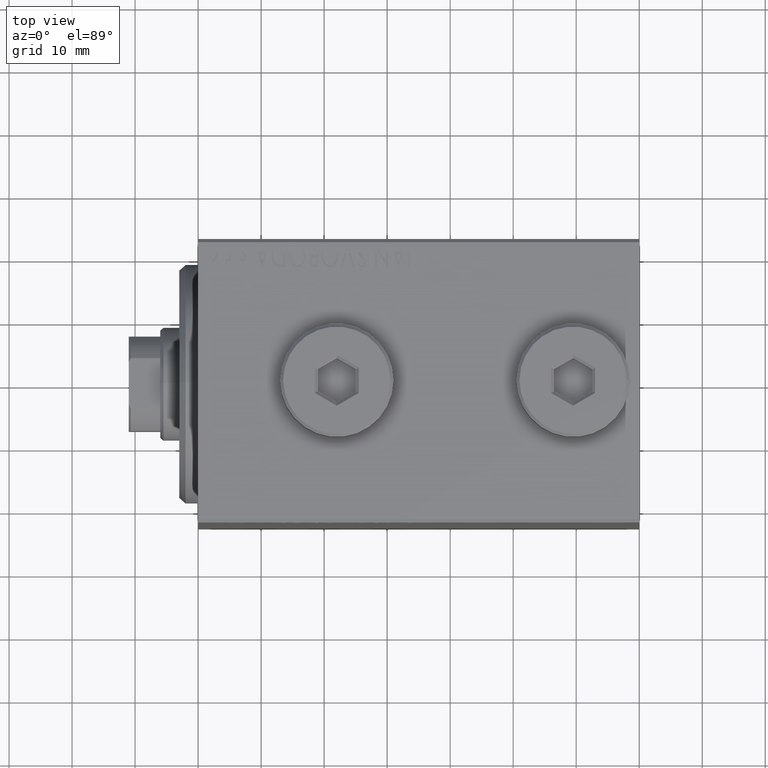
[diagram: clean part render]
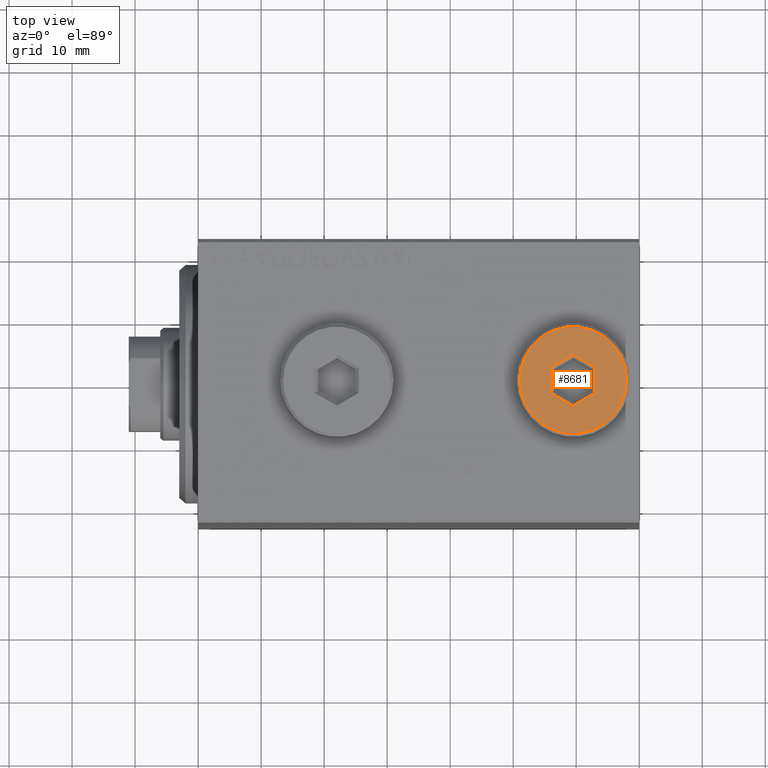
[diagram: same view with one face highlighted and labeled with its STEP entity id]
A machine part, top view. The second image highlights one B-rep face of the part: STEP entity #8681.
In plain terms, the highlighted planar face has unit normal (0, 0, 1).
Its self-contained STEP definition (entity closure, byte-faithful):
#286 = CARTESIAN_POINT ( 'NONE',  ( 0.2500000000000027756, -3.897114317029979347, 5.000000000000000000 ) ) ;
#707 = DIRECTION ( 'NONE',  ( 0.000000000000000000, 0.000000000000000000, 1.000000000000000000 ) ) ;
#981 = ORIENTED_EDGE ( 'NONE', *, *, #41850, .T. ) ;
#1307 = CARTESIAN_POINT ( 'NONE',  ( -1.006139216460143630E-15, -4.041451884327387667, 5.000000000000000000 ) ) ;
#1585 = LINE ( 'NONE', #36422, #6460 ) ;
#2580 = EDGE_LOOP ( 'NONE', ( #981, #43783, #11514, #38127, #28590, #23123 ) ) ;
#4727 = CARTESIAN_POINT ( 'NONE',  ( 3.250000000000003109, 2.165063509461103042, 5.000000000000000000 ) ) ;
#4956 = FACE_BOUND ( 'NONE', #2580, .T. ) ;
#4958 = DIRECTION ( 'NONE',  ( 0.000000000000000000, -1.000000000000000000, 0.000000000000000000 ) ) ;
#6460 = VECTOR ( 'NONE', #22583, 1000.000000000000114 ) ;
#6925 = EDGE_CURVE ( 'NONE', #18338, #8123, #36324, .T. ) ;
#7754 = PLANE ( 'NONE',  #27437 ) ;
#8051 = CARTESIAN_POINT ( 'NONE',  ( 8.500000000000010658, 1.071565949253934716E-15, 5.000000000000000000 ) ) ;
#8123 = VERTEX_POINT ( 'NONE', #31103 ) ;
#8602 = CIRCLE ( 'NONE', #14512, 8.500000000000010658 ) ;
#8681 = ADVANCED_FACE ( 'NONE', ( #4956, #29188 ), #7754, .T. ) ;
#8937 = LINE ( 'NONE', #23217, #30168 ) ;
#9292 = ORIENTED_EDGE ( 'NONE', *, *, #27814, .T. ) ;
#11514 = ORIENTED_EDGE ( 'NONE', *, *, #6925, .T. ) ;
#11640 = EDGE_LOOP ( 'NONE', ( #37085, #9292 ) ) ;
#11768 = VERTEX_POINT ( 'NONE', #18283 ) ;
#12338 = CARTESIAN_POINT ( 'NONE',  ( 1.590596867181068292E-15, 4.041451884327386779, 5.000000000000000000 ) ) ;
#13479 = LINE ( 'NONE', #41596, #40491 ) ;
#14208 = VERTEX_POINT ( 'NONE', #8051 ) ;
#14512 = AXIS2_PLACEMENT_3D ( 'NONE', #28192, #25646, #35791 ) ;
#15842 = VECTOR ( 'NONE', #4958, 1000.000000000000000 ) ;
#17008 = CARTESIAN_POINT ( 'NONE',  ( -8.500000000000010658, 0.000000000000000000, 5.000000000000000000 ) ) ;
#17807 = LINE ( 'NONE', #286, #26907 ) ;
#18283 = CARTESIAN_POINT ( 'NONE',  ( -3.500000000000006661, 2.020725942163692945, 5.000000000000000000 ) ) ;
#18338 = VERTEX_POINT ( 'NONE', #12338 ) ;
#18481 = EDGE_CURVE ( 'NONE', #8123, #45147, #26860, .T. ) ;
#18792 = DIRECTION ( 'NONE',  ( 0.8660254037844387076, -0.4999999999999998890, 0.000000000000000000 ) ) ;
#18802 = CARTESIAN_POINT ( 'NONE',  ( 3.500000000000006661, -1.732050807568878303, 5.000000000000000000 ) ) ;
#19399 = EDGE_CURVE ( 'NONE', #45147, #25041, #17807, .T. ) ;
#22583 = DIRECTION ( 'NONE',  ( -0.8660254037844385966, 0.4999999999999999445, 0.000000000000000000 ) ) ;
#23123 = ORIENTED_EDGE ( 'NONE', *, *, #35751, .T. ) ;
#23217 = CARTESIAN_POINT ( 'NONE',  ( -0.2500000000000027756, 3.897114317029978459, 5.000000000000000000 ) ) ;
#23231 = VERTEX_POINT ( 'NONE', #35215 ) ;
#25041 = VERTEX_POINT ( 'NONE', #1307 ) ;
#25504 = DIRECTION ( 'NONE',  ( 0.000000000000000000, 0.000000000000000000, 1.000000000000000000 ) ) ;
#25646 = DIRECTION ( 'NONE',  ( 0.000000000000000000, 0.000000000000000000, 1.000000000000000000 ) ) ;
#25808 = VERTEX_POINT ( 'NONE', #17008 ) ;
#25841 = DIRECTION ( 'NONE',  ( 1.000000000000000000, 0.000000000000000000, 0.000000000000000000 ) ) ;
#25964 = DIRECTION ( 'NONE',  ( 1.000000000000000000, 0.000000000000000000, -0.000000000000000000 ) ) ;
#26860 = LINE ( 'NONE', #18802, #15842 ) ;
#26907 = VECTOR ( 'NONE', #39474, 1000.000000000000000 ) ;
#27437 = AXIS2_PLACEMENT_3D ( 'NONE', #39341, #25504, #25964 ) ;
#27814 = EDGE_CURVE ( 'NONE', #14208, #25808, #8602, .T. ) ;
#28192 = CARTESIAN_POINT ( 'NONE',  ( 0.000000000000000000, 0.000000000000000000, 5.000000000000000000 ) ) ;
#28590 = ORIENTED_EDGE ( 'NONE', *, *, #19399, .T. ) ;
#29188 = FACE_OUTER_BOUND ( 'NONE', #11640, .T. ) ;
#29520 = CARTESIAN_POINT ( 'NONE',  ( 0.000000000000000000, 0.000000000000000000, 5.000000000000000000 ) ) ;
#29779 = EDGE_CURVE ( 'NONE', #25808, #14208, #36659, .T. ) ;
#30168 = VECTOR ( 'NONE', #39860, 1000.000000000000000 ) ;
#31103 = CARTESIAN_POINT ( 'NONE',  ( 3.500000000000006661, 2.020725942163694722, 5.000000000000000000 ) ) ;
#31365 = CARTESIAN_POINT ( 'NONE',  ( 3.500000000000006661, -2.020725942163693833, 5.000000000000000000 ) ) ;
#31512 = AXIS2_PLACEMENT_3D ( 'NONE', #29520, #707, #25841 ) ;
#35215 = CARTESIAN_POINT ( 'NONE',  ( -3.500000000000006661, -2.020725942163694278, 5.000000000000000000 ) ) ;
#35751 = EDGE_CURVE ( 'NONE', #25041, #23231, #1585, .T. ) ;
#35791 = DIRECTION ( 'NONE',  ( 1.000000000000000000, 0.000000000000000000, 0.000000000000000000 ) ) ;
#36324 = LINE ( 'NONE', #4727, #42129 ) ;
#36422 = CARTESIAN_POINT ( 'NONE',  ( -3.250000000000003109, -2.165063509461102598, 5.000000000000000000 ) ) ;
#36659 = CIRCLE ( 'NONE', #31512, 8.500000000000010658 ) ;
#37085 = ORIENTED_EDGE ( 'NONE', *, *, #29779, .T. ) ;
#38127 = ORIENTED_EDGE ( 'NONE', *, *, #18481, .T. ) ;
#38141 = DIRECTION ( 'NONE',  ( 0.000000000000000000, 1.000000000000000000, 0.000000000000000000 ) ) ;
#39341 = CARTESIAN_POINT ( 'NONE',  ( 0.000000000000000000, 0.000000000000000000, 5.000000000000000000 ) ) ;
#39474 = DIRECTION ( 'NONE',  ( -0.8660254037844387076, -0.4999999999999998890, 0.000000000000000000 ) ) ;
#39860 = DIRECTION ( 'NONE',  ( 0.8660254037844387076, 0.4999999999999998335, 0.000000000000000000 ) ) ;
#40491 = VECTOR ( 'NONE', #38141, 1000.000000000000000 ) ;
#41350 = EDGE_CURVE ( 'NONE', #11768, #18338, #8937, .T. ) ;
#41596 = CARTESIAN_POINT ( 'NONE',  ( -3.500000000000006661, 1.732050807568878081, 5.000000000000000000 ) ) ;
#41850 = EDGE_CURVE ( 'NONE', #23231, #11768, #13479, .T. ) ;
#42129 = VECTOR ( 'NONE', #18792, 1000.000000000000000 ) ;
#43783 = ORIENTED_EDGE ( 'NONE', *, *, #41350, .T. ) ;
#45147 = VERTEX_POINT ( 'NONE', #31365 ) ;